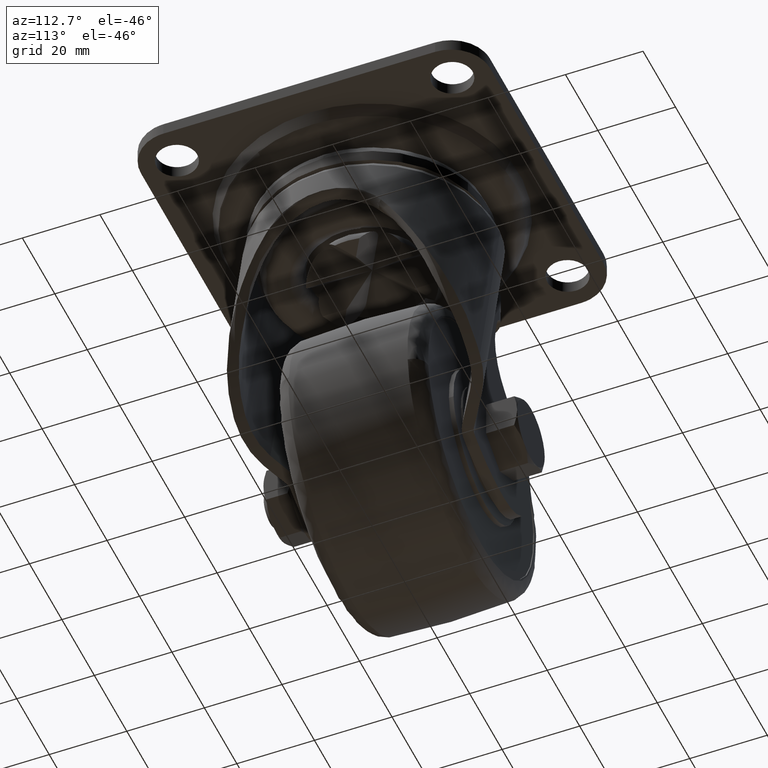
[diagram: clean part render]
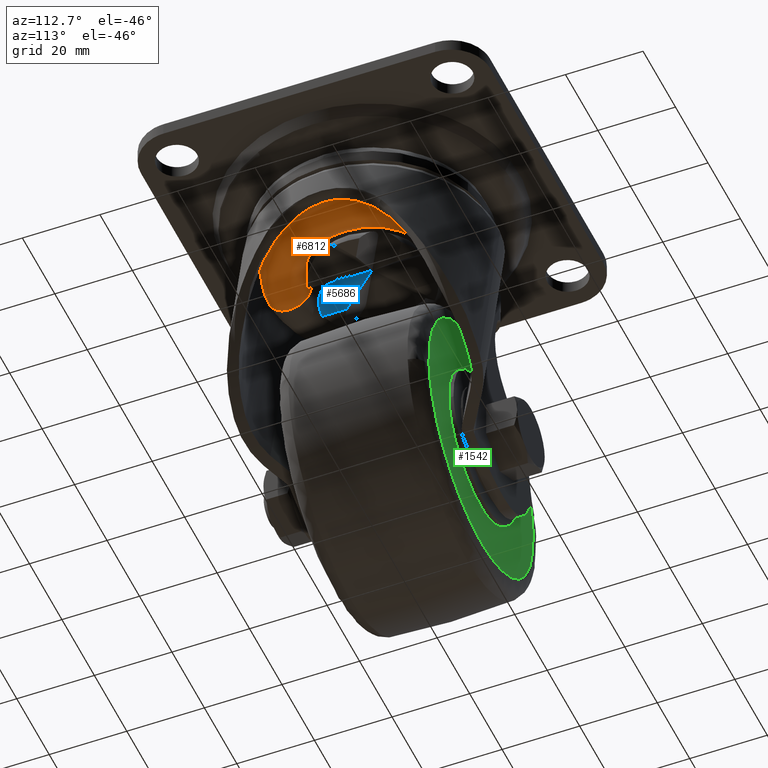
[diagram: same view with three faces highlighted in distinct colors, each labeled with its STEP entity id]
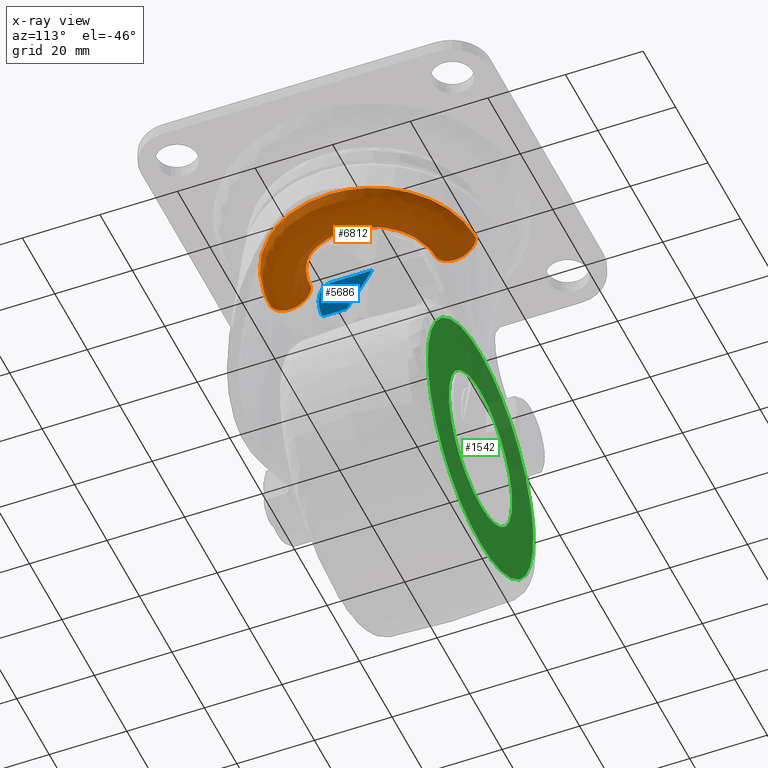
[diagram: x-ray of the same camera — body ghosted, the three highlighted faces saturated]
A machine part, auxiliary view with three faces highlighted in distinct colors.
The next image is the same camera in x-ray (body ghosted, the three faces saturated) — at least one of them is partly hidden behind the body in this view.
Their STEP definitions:

[orange] entity #6812 — the highlighted face is a freeform B-spline surface patch.
#6312=CARTESIAN_POINT('',(0.0,15.749999999999989,-20.498246059941291));
#6313=VERTEX_POINT('',#6312);
#6327=CARTESIAN_POINT('',(15.750000000000000,0.0,-20.498246059601549));
#6328=VERTEX_POINT('',#6327);
#6329=CARTESIAN_POINT('',(0.0,15.749999999999989,-20.498246059941291));
#6330=CARTESIAN_POINT('',(15.749999999999995,15.749999999999995,-20.498246059771425));
#6331=CARTESIAN_POINT('',(15.750000000000000,0.0,-20.498246059601549));
#6339=(BOUNDED_CURVE()B_SPLINE_CURVE(2,(#6329,#6330,#6331),.UNSPECIFIED.,.F.,.U.)B_SPLINE_CURVE_WITH_KNOTS((3,3),(0.250000000000000,0.500000000000000),.UNSPECIFIED.)CURVE()GEOMETRIC_REPRESENTATION_ITEM()RATIONAL_B_SPLINE_CURVE((1.0,0.707106781186547,1.0))REPRESENTATION_ITEM(''));
#6340=EDGE_CURVE('',#6313,#6328,#6339,.T.);
#6342=CARTESIAN_POINT('',(11.424647369014870,-10.841583486449711,-20.498246059765140));
#6343=VERTEX_POINT('',#6342);
#6344=CARTESIAN_POINT('',(15.750000000000000,0.0,-20.498246059601549));
#6345=CARTESIAN_POINT('',(15.749999999999996,-6.283611985570123,-20.498246059669320));
#6346=CARTESIAN_POINT('',(11.424647369014926,-10.841583486449760,-20.498246059765130));
#6354=(BOUNDED_CURVE()B_SPLINE_CURVE(2,(#6344,#6345,#6346),.UNSPECIFIED.,.F.,.U.)B_SPLINE_CURVE_WITH_KNOTS((3,3),(0.500000000000000,0.621049512383182),.UNSPECIFIED.)CURVE()GEOMETRIC_REPRESENTATION_ITEM()RATIONAL_B_SPLINE_CURVE((1.0,0.858181674729163,0.853699662426601))REPRESENTATION_ITEM(''));
#6355=EDGE_CURVE('',#6328,#6343,#6354,.T.);
#6469=CARTESIAN_POINT('',(8.604005E-016,-15.749999999999989,-20.498246059941291));
#6470=VERTEX_POINT('',#6469);
#6471=CARTESIAN_POINT('',(11.424647369014926,-10.841583486449760,-20.498246059765130));
#6472=CARTESIAN_POINT('',(6.766734901427586,-15.749999999999988,-20.498246059868311));
#6473=CARTESIAN_POINT('',(8.604005E-016,-15.749999999999989,-20.498246059941291));
#6481=(BOUNDED_CURVE()B_SPLINE_CURVE(2,(#6471,#6472,#6473),.UNSPECIFIED.,.F.,.U.)B_SPLINE_CURVE_WITH_KNOTS((3,3),(0.621049512383182,0.750000000000000),.UNSPECIFIED.)CURVE()GEOMETRIC_REPRESENTATION_ITEM()RATIONAL_B_SPLINE_CURVE((0.853699662426601,0.848925106457384,1.0))REPRESENTATION_ITEM(''));
#6482=EDGE_CURVE('',#6343,#6470,#6481,.T.);
#6622=CARTESIAN_POINT('',(8.818344E-015,-26.753507880797130,-20.498246059992422));
#6623=VERTEX_POINT('',#6622);
#6624=CARTESIAN_POINT('',(8.818344E-015,-26.753507880797130,-20.498246059992422));
#6625=CARTESIAN_POINT('',(2.310105E-016,-26.753511286761778,-20.768293652646619));
#6626=CARTESIAN_POINT('',(5.825500E-015,-26.707062497439079,-21.398447596397570));
#6627=CARTESIAN_POINT('',(2.274823E-015,-26.487270234793939,-22.275890555253550));
#6628=CARTESIAN_POINT('',(3.188951E-015,-26.066603544846060,-23.224936194941922));
#6629=CARTESIAN_POINT('',(2.565575E-015,-25.438986846464619,-24.139896836434101));
#6630=CARTESIAN_POINT('',(2.481582E-015,-24.554060981427220,-24.951802315540629));
#6631=CARTESIAN_POINT('',(2.181411E-015,-23.518526691167072,-25.555324043655069));
#6632=CARTESIAN_POINT('',(1.994980E-015,-22.486509289161258,-25.896248681969290));
#6633=CARTESIAN_POINT('',(1.792897E-015,-21.477676838392441,-26.020604000006639));
#6634=CARTESIAN_POINT('',(1.732102E-015,-20.485212275148371,-25.977998396683368));
#6635=CARTESIAN_POINT('',(1.693057E-015,-19.625387197653971,-25.779368176163018));
#6636=CARTESIAN_POINT('',(1.657604E-015,-18.748530841155130,-25.422453815410989));
#6637=CARTESIAN_POINT('',(1.636195E-015,-18.030841851902061,-24.992287261948938));
#6638=CARTESIAN_POINT('',(1.631014E-015,-17.330264086043851,-24.387919186478179));
#6639=CARTESIAN_POINT('',(1.576997E-015,-16.671288149899429,-23.614599009987881));
#6640=CARTESIAN_POINT('',(1.768035E-015,-16.157397111320670,-22.680933044111750));
#6641=CARTESIAN_POINT('',(1.435257E-015,-15.823090287398481,-21.578455817466569));
#6642=CARTESIAN_POINT('',(2.016986E-015,-15.749936636420079,-20.880829611245009));
#6643=CARTESIAN_POINT('',(8.604005E-016,-15.749999999999989,-20.498246059941291));
#6644=B_SPLINE_CURVE_WITH_KNOTS('',3,(#6624,#6625,#6626,#6627,#6628,#6629,#6630,#6631,#6632,#6633,#6634,#6635,#6636,#6637,#6638,#6639,#6640,#6641,#6642,#6643),.UNSPECIFIED.,.F.,.U.,(4,1,1,1,1,1,1,1,1,1,1,1,1,1,1,1,1,4),(0.000000306083649,0.810153460894846,1.890447888449778,2.700663043690041,3.915996555946689,5.198845665518078,6.279115278884778,7.494427952928538,8.439667937314539,9.317295226576480,10.465094601166321,11.072785024228921,12.153072793075481,12.963275580221961,13.841006074080950,15.191380430653821,16.136637914507119,17.284378211840359),.UNSPECIFIED.);
#6645=EDGE_CURVE('',#6623,#6470,#6644,.T.);
#6677=CARTESIAN_POINT('',(-1.421085E-014,26.753507880797130,-20.498246059992422));
#6678=VERTEX_POINT('',#6677);
#6692=CARTESIAN_POINT('',(-1.421085E-014,26.753507880797130,-20.498246059992422));
#6693=CARTESIAN_POINT('',(6.812344E-015,26.753553544230520,-20.858333933569519));
#6694=CARTESIAN_POINT('',(-4.474998E-015,26.684768416551609,-21.555975258729660));
#6695=CARTESIAN_POINT('',(1.355167E-015,26.389120265397079,-22.552702308670089));
#6696=CARTESIAN_POINT('',(-3.833323E-016,25.926259113267580,-23.458324797407489));
#6697=CARTESIAN_POINT('',(1.819518E-016,25.236529197355981,-24.353531065791358));
#6698=CARTESIAN_POINT('',(-6.119003E-017,24.455762258904329,-25.010493636081598));
#6699=CARTESIAN_POINT('',(9.940733E-018,23.553233713551410,-25.521671325742361));
#6700=CARTESIAN_POINT('',(-4.420085E-023,22.620583687636241,-25.868414694123071));
#6701=CARTESIAN_POINT('',(1.507285E-023,21.567911323872998,-26.024519285400729));
#6702=CARTESIAN_POINT('',(-5.458017E-024,20.394970751675739,-25.974182042018288));
#6703=CARTESIAN_POINT('',(1.604512E-024,19.252097030240190,-25.680481889979589));
#6704=CARTESIAN_POINT('',(-2.293918E-025,18.253646265591851,-25.146691512617320));
#6705=CARTESIAN_POINT('',(0.0,17.474986185812980,-24.531231861451900));
#6706=CARTESIAN_POINT('',(0.0,16.756670560744890,-23.748637286102081));
#6707=CARTESIAN_POINT('',(0.0,16.180075190510529,-22.745149726565259));
#6708=CARTESIAN_POINT('',(0.0,15.825440071764501,-21.600971730190921));
#6709=CARTESIAN_POINT('',(0.0,15.749938185459740,-20.880829283109719));
#6710=CARTESIAN_POINT('',(0.0,15.749999999999989,-20.498246059941291));
#6711=B_SPLINE_CURVE_WITH_KNOTS('',3,(#6692,#6693,#6694,#6695,#6696,#6697,#6698,#6699,#6700,#6701,#6702,#6703,#6704,#6705,#6706,#6707,#6708,#6709,#6710),.UNSPECIFIED.,.F.,.U.,(4,1,1,1,1,1,1,1,1,1,1,1,1,1,1,1,4),(0.000000306093526,1.080260072738689,2.093000364153347,3.105773971790962,4.118551436540038,5.468921260360531,6.144104290101607,7.224355537258134,8.439667937313432,9.317295226575354,10.735171808211989,11.950521402450480,12.693197236377150,13.705975225651979,15.123839689662830,16.136637914507109,17.284378211840352),.UNSPECIFIED.);
#6712=EDGE_CURVE('',#6678,#6313,#6711,.T.);
#6719=CARTESIAN_POINT('',(-0.746387221485805,26.697936995101866,-19.718254678012315));
#6720=CARTESIAN_POINT('',(-0.375366996899383,26.697936995101877,-19.718254678012315));
#6721=CARTESIAN_POINT('',(26.697936995101863,26.697936995101877,-19.718254678012315));
#6722=CARTESIAN_POINT('',(26.697936995101866,1.634723E-015,-19.718254678012311));
#6723=CARTESIAN_POINT('',(26.697936995101877,-26.697936995101863,-19.718254678012315));
#6724=CARTESIAN_POINT('',(-0.375366996899388,-26.697936995101870,-19.718254678012311));
#6725=CARTESIAN_POINT('',(-0.746387221485818,-26.697936995101873,-19.718254678012308));
#6726=CARTESIAN_POINT('',(-0.771698975498168,27.603327112194634,-26.040017238464841));
#6727=CARTESIAN_POINT('',(-0.388096578564732,27.603327112194634,-26.040017238464841));
#6728=CARTESIAN_POINT('',(27.603327112194624,27.603327112194624,-26.040017238464845));
#6729=CARTESIAN_POINT('',(27.603327112194638,1.690160E-015,-26.040017238464845));
#6730=CARTESIAN_POINT('',(27.603327112194624,-27.603327112194624,-26.040017238464845));
#6731=CARTESIAN_POINT('',(-0.388096578564737,-27.603327112194631,-26.040017238464838));
#6732=CARTESIAN_POINT('',(-0.771698975498181,-27.603327112194631,-26.040017238464852));
#6733=CARTESIAN_POINT('',(-0.593163293170616,21.217185628327929,-25.999891400087588));
#6734=CARTESIAN_POINT('',(-0.298308863843051,21.217185628327933,-25.999891400087595));
#6735=CARTESIAN_POINT('',(21.217185628327933,21.217185628327933,-25.999891400087595));
#6736=CARTESIAN_POINT('',(21.217185628327940,1.299135E-015,-25.999891400087591));
#6737=CARTESIAN_POINT('',(21.217185628327933,-21.217185628327933,-25.999891400087595));
#6738=CARTESIAN_POINT('',(-0.298308863843055,-21.217185628327943,-25.999891400087595));
#6739=CARTESIAN_POINT('',(-0.593163293170626,-21.217185628327940,-25.999891400087595));
#6740=CARTESIAN_POINT('',(-0.416754645251010,14.907127213644412,-25.960243612023650));
#6741=CARTESIAN_POINT('',(-0.209590859983278,14.907127213644412,-25.960243612023650));
#6742=CARTESIAN_POINT('',(14.907127213644415,14.907127213644415,-25.960243612023657));
#6743=CARTESIAN_POINT('',(14.907127213644412,9.127681E-016,-25.960243612023650));
#6744=CARTESIAN_POINT('',(14.907127213644415,-14.907127213644408,-25.960243612023657));
#6745=CARTESIAN_POINT('',(-0.209590859983281,-14.907127213644412,-25.960243612023660));
#6746=CARTESIAN_POINT('',(-0.416754645251017,-14.907127213644410,-25.960243612023657));
#6747=CARTESIAN_POINT('',(-0.441887561840386,15.806120396124955,-19.714427380203333));
#6748=CARTESIAN_POINT('',(-0.222230502184945,15.806120396124957,-19.714427380203336));
#6749=CARTESIAN_POINT('',(15.806120396124951,15.806120396124951,-19.714427380203336));
#6750=CARTESIAN_POINT('',(15.806120396124959,9.678138E-016,-19.714427380203333));
#6751=CARTESIAN_POINT('',(15.806120396124964,-15.806120396124951,-19.714427380203336));
#6752=CARTESIAN_POINT('',(-0.222230502184948,-15.806120396124955,-19.714427380203333));
#6753=CARTESIAN_POINT('',(-0.441887561840394,-15.806120396124959,-19.714427380203336));
#6761=(BOUNDED_SURFACE()B_SPLINE_SURFACE(2,2,((#6719,#6726,#6733,#6740,#6747),(#6720,#6727,#6734,#6741,#6748),(#6721,#6728,#6735,#6742,#6749),(#6722,#6729,#6736,#6743,#6750),(#6723,#6730,#6737,#6744,#6751),(#6724,#6731,#6738,#6745,#6752),(#6725,#6732,#6739,#6746,#6753)),.UNSPECIFIED.,.F.,.F.,.U.)B_SPLINE_SURFACE_WITH_KNOTS((3,1,2,1,3),(3,2,3),(0.0,0.884691807260269,45.119282170274637,89.353872533289007,90.238564340549303),(0.0,10.089981019831660,20.101732622146329),.UNSPECIFIED.)GEOMETRIC_REPRESENTATION_ITEM()RATIONAL_B_SPLINE_SURFACE(((0.997364038925622,0.655637655299653,1.011715728752538,0.658398391937515,0.992107054316681),(0.991589271263368,0.651841493635293,1.005857864376269,0.654586245525322,0.986362724752790),(0.697076120488398,0.458237248752934,0.707106781186548,0.460166778503460,0.693401916994340),(0.985814503601113,0.648045331970933,1.0,0.650774099113129,0.980618395188899),(0.697076120488398,0.458237248752934,0.707106781186548,0.460166778503460,0.693401916994340),(0.991589271263368,0.651841493635293,1.005857864376269,0.654586245525322,0.986362724752790),(0.997364038925622,0.655637655299653,1.011715728752538,0.658398391937516,0.992107054316681)))REPRESENTATION_ITEM('')SURFACE());
#6762=ORIENTED_EDGE('',*,*,#6482,.F.);
#6763=ORIENTED_EDGE('',*,*,#6355,.F.);
#6764=ORIENTED_EDGE('',*,*,#6340,.F.);
#6765=ORIENTED_EDGE('',*,*,#6712,.F.);
#6766=CARTESIAN_POINT('',(26.753507880797152,0.0,-20.498246059601549));
#6767=VERTEX_POINT('',#6766);
#6768=CARTESIAN_POINT('',(-1.421085E-014,26.753507880797141,-20.498246059992429));
#6769=CARTESIAN_POINT('',(26.753507880797144,26.753507880797159,-20.498246059796990));
#6770=CARTESIAN_POINT('',(26.753507880797152,0.0,-20.498246059601549));
#6778=(BOUNDED_CURVE()B_SPLINE_CURVE(2,(#6768,#6769,#6770),.UNSPECIFIED.,.F.,.U.)B_SPLINE_CURVE_WITH_KNOTS((3,3),(0.250000000000000,0.500000000000000),.UNSPECIFIED.)CURVE()GEOMETRIC_REPRESENTATION_ITEM()RATIONAL_B_SPLINE_CURVE((1.0,0.707106781186547,1.0))REPRESENTATION_ITEM(''));
#6779=EDGE_CURVE('',#6678,#6767,#6778,.T.);
#6780=ORIENTED_EDGE('',*,*,#6779,.T.);
#6781=CARTESIAN_POINT('',(19.406309490405540,-18.415898997618068,-20.498246059789711));
#6782=VERTEX_POINT('',#6781);
#6783=CARTESIAN_POINT('',(26.753507880797152,0.0,-20.498246059601549));
#6784=CARTESIAN_POINT('',(26.753507880797144,-10.673566903497097,-20.498246059679520));
#6785=CARTESIAN_POINT('',(19.406309490405548,-18.415898997618068,-20.498246059789754));
#6793=(BOUNDED_CURVE()B_SPLINE_CURVE(2,(#6783,#6784,#6785),.UNSPECIFIED.,.F.,.U.)B_SPLINE_CURVE_WITH_KNOTS((3,3),(0.500000000000000,0.621049522242090),.UNSPECIFIED.)CURVE()GEOMETRIC_REPRESENTATION_ITEM()RATIONAL_B_SPLINE_CURVE((1.0,0.858181663178735,0.853699661696525))REPRESENTATION_ITEM(''));
#6794=EDGE_CURVE('',#6767,#6782,#6793,.T.);
#6795=ORIENTED_EDGE('',*,*,#6794,.T.);
#6796=CARTESIAN_POINT('',(19.406309490405548,-18.415898997618068,-20.498246059789754));
#6797=CARTESIAN_POINT('',(11.494214552922401,-26.753507880797137,-20.498246059908453));
#6798=CARTESIAN_POINT('',(8.818344E-015,-26.753507880797130,-20.498246059992422));
#6806=(BOUNDED_CURVE()B_SPLINE_CURVE(2,(#6796,#6797,#6798),.UNSPECIFIED.,.F.,.U.)B_SPLINE_CURVE_WITH_KNOTS((3,3),(0.621049522242090,0.750000000000000),.UNSPECIFIED.)CURVE()GEOMETRIC_REPRESENTATION_ITEM()RATIONAL_B_SPLINE_CURVE((0.853699661696525,0.848925118007812,1.0))REPRESENTATION_ITEM(''));
#6807=EDGE_CURVE('',#6782,#6623,#6806,.T.);
#6808=ORIENTED_EDGE('',*,*,#6807,.T.);
#6809=ORIENTED_EDGE('',*,*,#6645,.T.);
#6810=EDGE_LOOP('',(#6762,#6763,#6764,#6765,#6780,#6795,#6808,#6809));
#6811=FACE_OUTER_BOUND('',#6810,.T.);
#6812=ADVANCED_FACE('',(#6811),#6761,.T.);

[blue] entity #5686 — the highlighted face is a freeform B-spline surface patch.
#5109=CARTESIAN_POINT('',(-5.0,-8.660254037844741,-26.0));
#5110=VERTEX_POINT('',#5109);
#5118=CARTESIAN_POINT('',(-5.0,-14.935277031243841,-26.0));
#5119=VERTEX_POINT('',#5118);
#5120=CARTESIAN_POINT('',(-5.0,-14.935277031243841,-26.0));
#5121=CARTESIAN_POINT('',(-5.0,-8.660254037844741,-26.0));
#5122=QUASI_UNIFORM_CURVE('',1,(#5120,#5121),.UNSPECIFIED.,.F.,.U.);
#5123=EDGE_CURVE('',#5119,#5110,#5122,.T.);
#5305=CARTESIAN_POINT('',(-2.881881E-013,-1.665335E-013,-21.0));
#5306=VERTEX_POINT('',#5305);
#5312=CARTESIAN_POINT('',(-5.0,-8.660254037844741,-26.0));
#5313=CARTESIAN_POINT('',(-2.881881E-013,-1.665335E-013,-21.0));
#5314=QUASI_UNIFORM_CURVE('',1,(#5312,#5313),.UNSPECIFIED.,.F.,.U.);
#5315=EDGE_CURVE('',#5110,#5306,#5314,.T.);
#5627=CARTESIAN_POINT('',(-5.249749990309032,-15.888873580993790,-26.249749990309031));
#5628=CARTESIAN_POINT('',(0.249750124419480,-15.888873580993790,-20.750249875580518));
#5629=CARTESIAN_POINT('',(-5.249749990309032,0.755892787445676,-26.249749990309031));
#5630=CARTESIAN_POINT('',(0.249750124419480,0.755892787445676,-20.750249875580518));
#5631=B_SPLINE_SURFACE_WITH_KNOTS('',1,1,((#5627,#5629),(#5628,#5630)),.UNSPECIFIED.,.F.,.F.,.U.,(2,2),(2,2),(0.0,7.777467648521453),(0.0,16.644766368439459),.UNSPECIFIED.);
#5632=ORIENTED_EDGE('',*,*,#5123,.T.);
#5633=ORIENTED_EDGE('',*,*,#5315,.T.);
#5634=CARTESIAN_POINT('',(0.0,-10.750000000000000,-21.0));
#5635=VERTEX_POINT('',#5634);
#5636=CARTESIAN_POINT('',(-2.881881E-013,-1.665335E-013,-21.0));
#5637=CARTESIAN_POINT('',(0.0,-10.750000000000000,-21.0));
#5638=QUASI_UNIFORM_CURVE('',1,(#5636,#5637),.UNSPECIFIED.,.F.,.U.);
#5639=EDGE_CURVE('',#5306,#5635,#5638,.T.);
#5640=ORIENTED_EDGE('',*,*,#5639,.T.);
#5641=CARTESIAN_POINT('',(2.602085E-015,-10.750000000000000,-21.0));
#5642=CARTESIAN_POINT('',(2.598591E-015,-10.944620965879199,-20.999999999999989));
#5643=CARTESIAN_POINT('',(-0.011320363175249,-11.138911279824001,-21.011320363175241));
#5644=CARTESIAN_POINT('',(-0.045483257099538,-11.429844878416080,-21.045483257099541));
#5645=CARTESIAN_POINT('',(-0.059801213602271,-11.526911520278530,-21.059801213602270));
#5646=CARTESIAN_POINT('',(-0.093596450229908,-11.717409658226041,-21.093596450229910));
#5647=CARTESIAN_POINT('',(-0.113111506519527,-11.811274891629781,-21.113111506519520));
#5648=CARTESIAN_POINT('',(-0.179173365657480,-12.088896528860660,-21.179173365657480));
#5649=CARTESIAN_POINT('',(-0.233202787407956,-12.268696883188509,-21.233202787407961));
#5650=CARTESIAN_POINT('',(-0.328574887800713,-12.530822239403850,-21.328574887800720));
#5651=CARTESIAN_POINT('',(-0.362870058023504,-12.617141588939630,-21.362870058023510));
#5652=CARTESIAN_POINT('',(-0.435197767193992,-12.784969745895250,-21.435197767193991));
#5653=CARTESIAN_POINT('',(-0.473311495307215,-12.866742000784461,-21.473311495307229));
#5654=CARTESIAN_POINT('',(-0.593206132049757,-13.105958618348209,-21.593206132049762));
#5655=CARTESIAN_POINT('',(-0.680516585894613,-13.257329094585041,-21.680516585894608));
#5656=CARTESIAN_POINT('',(-0.821886786556333,-13.472956044039289,-21.821886786556330));
#5657=CARTESIAN_POINT('',(-0.870845510517416,-13.543046213065409,-21.870845510517420));
#5658=CARTESIAN_POINT('',(-0.971777572533317,-13.678882540798730,-21.971777572533309));
#5659=CARTESIAN_POINT('',(-1.023503094076735,-13.744313431528960,-22.023503094076730));
#5660=CARTESIAN_POINT('',(-1.182262687375519,-13.933530249869801,-22.182262687375520));
#5661=CARTESIAN_POINT('',(-1.292866240151091,-14.050267077862330,-22.292866240151099));
#5662=CARTESIAN_POINT('',(-1.522958465987299,-14.266194178016610,-22.522958465987301));
#5663=CARTESIAN_POINT('',(-1.642589737291816,-14.365478152354880,-22.642589737291821));
#5664=CARTESIAN_POINT('',(-2.013595822885045,-14.637088954094921,-23.013595822885041));
#5665=CARTESIAN_POINT('',(-2.270544237436533,-14.778958143966470,-23.270544237436528));
#5666=CARTESIAN_POINT('',(-2.602330884235312,-14.913051182288710,-23.602330884235311));
#5667=CARTESIAN_POINT('',(-2.669224940386409,-14.937680408190831,-23.669224940386400));
#5668=CARTESIAN_POINT('',(-2.804075134598195,-14.982606483075450,-23.804075134598200));
#5669=CARTESIAN_POINT('',(-2.872143083625468,-15.002932089419099,-23.872143083625470));
#5670=CARTESIAN_POINT('',(-3.077158961722868,-15.057231321607221,-24.077158961722869));
#5671=CARTESIAN_POINT('',(-3.214106152554590,-15.084365350439660,-24.214106152554589));
#5672=CARTESIAN_POINT('',(-3.625706352831576,-15.140290143118429,-24.625706352831578));
#5673=CARTESIAN_POINT('',(-3.901112491711572,-15.143788266288990,-24.901112491711569));
#5674=CARTESIAN_POINT('',(-4.246563415770151,-15.108087522914021,-25.246563415770151));
#5675=CARTESIAN_POINT('',(-4.315810079099868,-15.098911410511599,-25.315810079099862));
#5676=CARTESIAN_POINT('',(-4.453897300480783,-15.076607163909481,-25.453897300480779));
#5677=CARTESIAN_POINT('',(-4.522705538355013,-15.063491279364630,-25.522705538355009));
#5678=CARTESIAN_POINT('',(-4.728437519578534,-15.018364024416670,-25.728437519578531));
#5679=CARTESIAN_POINT('',(-4.864669677977736,-14.980582626091360,-25.864669677977730));
#5680=CARTESIAN_POINT('',(-5.000000000000012,-14.935277031243940,-26.000000000000011));
#5681=B_SPLINE_CURVE_WITH_KNOTS('',3,(#5641,#5642,#5643,#5644,#5645,#5646,#5647,#5648,#5649,#5650,#5651,#5652,#5653,#5654,#5655,#5656,#5657,#5658,#5659,#5660,#5661,#5662,#5663,#5664,#5665,#5666,#5667,#5668,#5669,#5670,#5671,#5672,#5673,#5674,#5675,#5676,#5677,#5678,#5679,#5680),.UNSPECIFIED.,.F.,.U.,(4,2,2,2,2,2,2,2,2,2,2,2,2,2,2,2,2,2,2,4),(0.0,0.062500000000000,0.093749999999999,0.124999999999999,0.187500000000000,0.218750000000000,0.250000000000000,0.312500000000001,0.343750000000001,0.375000000000001,0.437500000000001,0.500000000000000,0.624999999999999,0.656249999999999,0.687499999999999,0.749999999999999,0.874999999999999,0.906250000000000,0.937500000000000,1.0),.UNSPECIFIED.);
#5682=EDGE_CURVE('',#5635,#5119,#5681,.T.);
#5683=ORIENTED_EDGE('',*,*,#5682,.T.);
#5684=EDGE_LOOP('',(#5632,#5633,#5640,#5683));
#5685=FACE_OUTER_BOUND('',#5684,.T.);
#5686=ADVANCED_FACE('',(#5685),#5631,.F.);

[green] entity #1542 — the highlighted face is a freeform B-spline surface patch.
#1161=CARTESIAN_POINT('',(-2.536369674674880,18.700000000002738,-69.690417808274361));
#1162=VERTEX_POINT('',#1161);
#1163=CARTESIAN_POINT('',(-22.0,18.699999999999999,-49.0));
#1164=VERTEX_POINT('',#1163);
#1165=CARTESIAN_POINT('',(-2.536369674674881,18.700000000002738,-69.690417808274361));
#1166=CARTESIAN_POINT('',(-2.500000000020876,18.700000000002692,-69.095764487741405));
#1167=CARTESIAN_POINT('',(-2.500000000020549,18.700000000002660,-68.499999999998749));
#1168=CARTESIAN_POINT('',(-2.500000000009962,18.700000000001289,-48.999999999999389));
#1169=CARTESIAN_POINT('',(-22.0,18.699999999999999,-49.0));
#1177=(BOUNDED_CURVE()B_SPLINE_CURVE(2,(#1165,#1166,#1167,#1168,#1169),.UNSPECIFIED.,.F.,.U.)B_SPLINE_CURVE_WITH_KNOTS((3,2,3),(0.239333216782247,0.250000000000000,0.500000000000000),.UNSPECIFIED.)CURVE()GEOMETRIC_REPRESENTATION_ITEM()RATIONAL_B_SPLINE_CURVE((0.976072587202081,0.987503086115868,1.0,0.707106781186548,1.0))REPRESENTATION_ITEM(''));
#1178=EDGE_CURVE('',#1162,#1164,#1177,.T.);
#1187=CARTESIAN_POINT('',(-41.463630325325120,18.700000000002738,-67.309582191725653));
#1188=VERTEX_POINT('',#1187);
#1194=CARTESIAN_POINT('',(-22.0,18.699999999999999,-49.0));
#1195=CARTESIAN_POINT('',(-40.343795415877338,18.700000000001364,-49.000000000000647));
#1196=CARTESIAN_POINT('',(-41.463630325325113,18.700000000002738,-67.309582191725653));
#1204=(BOUNDED_CURVE()B_SPLINE_CURVE(2,(#1194,#1195,#1196),.UNSPECIFIED.,.F.,.U.)B_SPLINE_CURVE_WITH_KNOTS((3,3),(0.500000000000000,0.739333216782247),.UNSPECIFIED.)CURVE()GEOMETRIC_REPRESENTATION_ITEM()RATIONAL_B_SPLINE_CURVE((1.0,0.719603695070679,0.976072587202081))REPRESENTATION_ITEM(''));
#1205=EDGE_CURVE('',#1164,#1188,#1204,.T.);
#1228=CARTESIAN_POINT('',(-22.0,18.699999999999999,-88.000000000000014));
#1229=VERTEX_POINT('',#1228);
#1230=CARTESIAN_POINT('',(-22.0,18.699999999999999,-88.000000000000014));
#1231=CARTESIAN_POINT('',(-3.656204584122659,18.700000000001364,-87.999999999999389));
#1232=CARTESIAN_POINT('',(-2.536369674674881,18.700000000002738,-69.690417808274361));
#1240=(BOUNDED_CURVE()B_SPLINE_CURVE(2,(#1230,#1231,#1232),.UNSPECIFIED.,.F.,.U.)B_SPLINE_CURVE_WITH_KNOTS((3,3),(0.0,0.239333216782247),.UNSPECIFIED.)CURVE()GEOMETRIC_REPRESENTATION_ITEM()RATIONAL_B_SPLINE_CURVE((1.0,0.719603695070679,0.976072587202081))REPRESENTATION_ITEM(''));
#1241=EDGE_CURVE('',#1229,#1162,#1240,.T.);
#1243=CARTESIAN_POINT('',(-41.463630325325113,18.700000000002738,-67.309582191725653));
#1244=CARTESIAN_POINT('',(-41.499999999979124,18.700000000002692,-67.904235512258609));
#1245=CARTESIAN_POINT('',(-41.499999999979451,18.700000000002660,-68.500000000001265));
#1246=CARTESIAN_POINT('',(-41.499999999990038,18.700000000001289,-88.000000000000625));
#1247=CARTESIAN_POINT('',(-22.0,18.699999999999999,-88.000000000000014));
#1255=(BOUNDED_CURVE()B_SPLINE_CURVE(2,(#1243,#1244,#1245,#1246,#1247),.UNSPECIFIED.,.F.,.U.)B_SPLINE_CURVE_WITH_KNOTS((3,2,3),(0.739333216782247,0.750000000000000,1.0),.UNSPECIFIED.)CURVE()GEOMETRIC_REPRESENTATION_ITEM()RATIONAL_B_SPLINE_CURVE((0.976072587202081,0.987503086115868,1.0,0.707106781186548,1.0))REPRESENTATION_ITEM(''));
#1256=EDGE_CURVE('',#1188,#1229,#1255,.T.);
#1465=CARTESIAN_POINT('',(-57.745950087548721,18.699999999999999,-32.753250125982618));
#1466=CARTESIAN_POINT('',(-57.745950087548721,18.699999999999999,-104.246751617453200));
#1467=CARTESIAN_POINT('',(13.745948925258149,18.699999999999999,-32.753250125982618));
#1468=CARTESIAN_POINT('',(13.745948925258149,18.699999999999999,-104.246751617453300));
#1469=B_SPLINE_SURFACE_WITH_KNOTS('',1,1,((#1465,#1467),(#1466,#1468)),.UNSPECIFIED.,.F.,.F.,.U.,(2,2),(2,2),(0.0,71.493501491470639),(0.0,71.491899012806869),.UNSPECIFIED.);
#1470=CARTESIAN_POINT('',(-54.439382967103128,18.700000000002429,-66.515955466093004));
#1471=VERTEX_POINT('',#1470);
#1472=CARTESIAN_POINT('',(-22.0,18.699999999999999,-101.0));
#1473=VERTEX_POINT('',#1472);
#1474=CARTESIAN_POINT('',(-54.439382967103136,18.700000000002426,-66.515955466093004));
#1475=CARTESIAN_POINT('',(-54.499999999983459,18.700000000002397,-67.507051739549283));
#1476=CARTESIAN_POINT('',(-54.499999999983707,18.700000000002358,-68.500000000000995));
#1477=CARTESIAN_POINT('',(-54.499999999992092,18.700000000001147,-101.000000000000480));
#1478=CARTESIAN_POINT('',(-22.0,18.699999999999999,-101.0));
#1486=(BOUNDED_CURVE()B_SPLINE_CURVE(2,(#1474,#1475,#1476,#1477,#1478),.UNSPECIFIED.,.F.,.U.)B_SPLINE_CURVE_WITH_KNOTS((3,2,3),(0.739333137775934,0.750000000000000,1.0),.UNSPECIFIED.)CURVE()GEOMETRIC_REPRESENTATION_ITEM()RATIONAL_B_SPLINE_CURVE((0.976072417876194,0.987502993554215,1.0,0.707106781186547,1.0))REPRESENTATION_ITEM(''));
#1487=EDGE_CURVE('',#1471,#1473,#1486,.T.);
#1488=ORIENTED_EDGE('',*,*,#1487,.F.);
#1489=CARTESIAN_POINT('',(-22.0,18.699999999999999,-36.000000000000007));
#1490=VERTEX_POINT('',#1489);
#1491=CARTESIAN_POINT('',(-22.0,18.699999999999999,-36.000000000000007));
#1492=CARTESIAN_POINT('',(-52.572978334790129,18.700000000001214,-36.000000000000519));
#1493=CARTESIAN_POINT('',(-54.439382967103136,18.700000000002426,-66.515955466093004));
#1501=(BOUNDED_CURVE()B_SPLINE_CURVE(2,(#1491,#1492,#1493),.UNSPECIFIED.,.F.,.U.)B_SPLINE_CURVE_WITH_KNOTS((3,3),(0.500000000000000,0.739333137775934),.UNSPECIFIED.)CURVE()GEOMETRIC_REPRESENTATION_ITEM()RATIONAL_B_SPLINE_CURVE((1.0,0.719603787632332,0.976072417876194))REPRESENTATION_ITEM(''));
#1502=EDGE_CURVE('',#1490,#1471,#1501,.T.);
#1503=ORIENTED_EDGE('',*,*,#1502,.F.);
#1504=CARTESIAN_POINT('',(10.439382967103130,18.700000000002429,-70.484044533906967));
#1505=VERTEX_POINT('',#1504);
#1506=CARTESIAN_POINT('',(10.439382967103132,18.700000000002433,-70.484044533906967));
#1507=CARTESIAN_POINT('',(10.499999999983455,18.700000000002397,-69.492948260450717));
#1508=CARTESIAN_POINT('',(10.499999999983711,18.700000000002358,-68.499999999999005));
#1509=CARTESIAN_POINT('',(10.499999999992099,18.700000000001147,-35.999999999999517));
#1510=CARTESIAN_POINT('',(-22.0,18.699999999999999,-36.000000000000007));
#1518=(BOUNDED_CURVE()B_SPLINE_CURVE(2,(#1506,#1507,#1508,#1509,#1510),.UNSPECIFIED.,.F.,.U.)B_SPLINE_CURVE_WITH_KNOTS((3,2,3),(0.239333137775934,0.250000000000000,0.500000000000000),.UNSPECIFIED.)CURVE()GEOMETRIC_REPRESENTATION_ITEM()RATIONAL_B_SPLINE_CURVE((0.976072417876194,0.987502993554215,1.0,0.707106781186547,1.0))REPRESENTATION_ITEM(''));
#1519=EDGE_CURVE('',#1505,#1490,#1518,.T.);
#1520=ORIENTED_EDGE('',*,*,#1519,.F.);
#1521=CARTESIAN_POINT('',(-22.0,18.699999999999999,-101.0));
#1522=CARTESIAN_POINT('',(8.572978334790143,18.700000000001218,-100.999999999999470));
#1523=CARTESIAN_POINT('',(10.439382967103132,18.700000000002433,-70.484044533906967));
#1531=(BOUNDED_CURVE()B_SPLINE_CURVE(2,(#1521,#1522,#1523),.UNSPECIFIED.,.F.,.U.)B_SPLINE_CURVE_WITH_KNOTS((3,3),(0.0,0.239333137775934),.UNSPECIFIED.)CURVE()GEOMETRIC_REPRESENTATION_ITEM()RATIONAL_B_SPLINE_CURVE((1.0,0.719603787632332,0.976072417876194))REPRESENTATION_ITEM(''));
#1532=EDGE_CURVE('',#1473,#1505,#1531,.T.);
#1533=ORIENTED_EDGE('',*,*,#1532,.F.);
#1534=EDGE_LOOP('',(#1488,#1503,#1520,#1533));
#1535=FACE_OUTER_BOUND('',#1534,.T.);
#1536=ORIENTED_EDGE('',*,*,#1205,.T.);
#1537=ORIENTED_EDGE('',*,*,#1256,.T.);
#1538=ORIENTED_EDGE('',*,*,#1241,.T.);
#1539=ORIENTED_EDGE('',*,*,#1178,.T.);
#1540=EDGE_LOOP('',(#1536,#1537,#1538,#1539));
#1541=FACE_BOUND('',#1540,.T.);
#1542=ADVANCED_FACE('',(#1535,#1541),#1469,.F.);